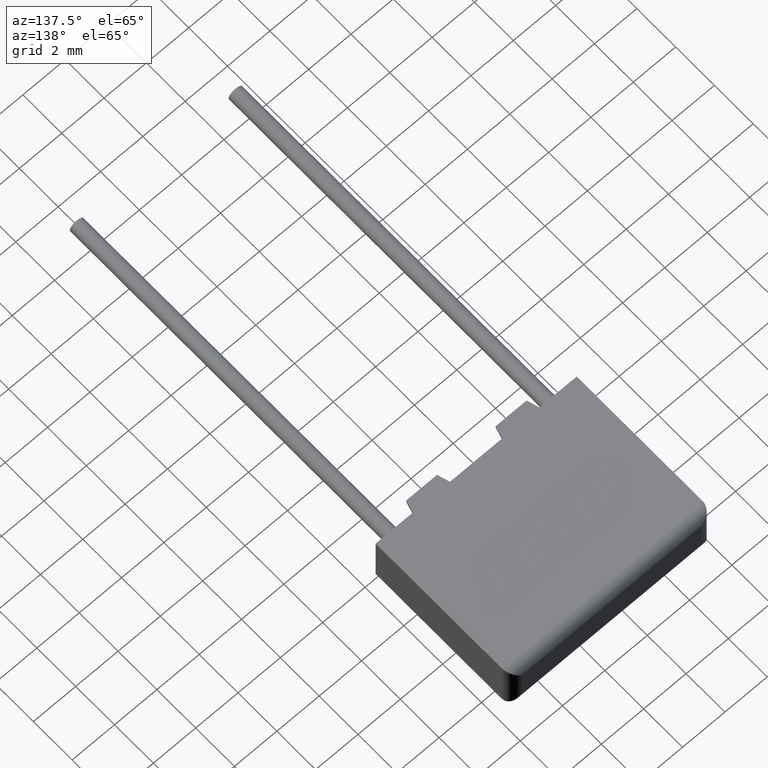
[diagram: clean part render]
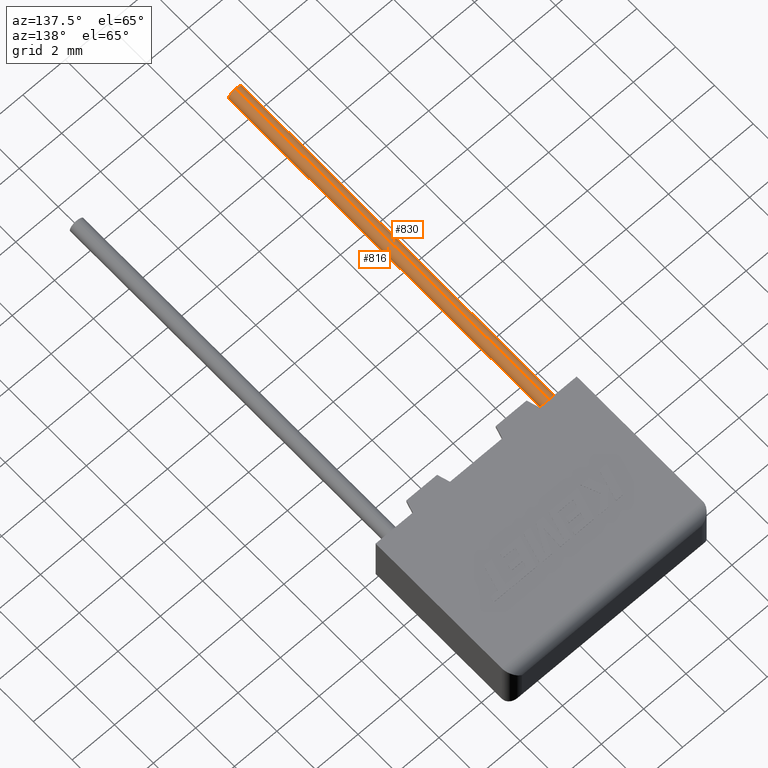
[diagram: same view with one multi-face feature highlighted, each face labeled with its STEP entity id]
A machine part, auxiliary view. The highlighted faces form ONE feature: a constant-radius fillet chain: 2 tangent blend faces with common blend radius 0.325 mm. The faces share edges in the B-rep.
Their STEP definitions:
[1] entity #830 (Cylinder):
#1 = CARTESIAN_POINT ( 'NONE',  ( 1.000000000000000000, -16.50000000000000000, 0.9249999999999998200 ) ) ;
#3 = VECTOR ( 'NONE', #983, 1000.000000000000000 ) ;
#38 = CIRCLE ( 'NONE', #1185, 0.3250000000000000100 ) ;
#89 = DIRECTION ( 'NONE',  ( 0.0000000000000000000, 0.0000000000000000000, -1.000000000000000000 ) ) ;
#176 = LINE ( 'NONE', #1, #2119 ) ;
#193 = CARTESIAN_POINT ( 'NONE',  ( 1.000000000000000000, 0.0000000000000000000, 1.249999999999999800 ) ) ;
#214 = EDGE_LOOP ( 'NONE', ( #694, #1488, #1243, #2752 ) ) ;
#306 = EDGE_CURVE ( 'NONE', #1738, #2451, #176, .T. ) ;
#524 = CARTESIAN_POINT ( 'NONE',  ( 1.000000000000000000, -16.50000000000000000, 1.249999999999999800 ) ) ;
#694 = ORIENTED_EDGE ( 'NONE', *, *, #306, .F. ) ;
#739 = CARTESIAN_POINT ( 'NONE',  ( 1.000000000000000000, -16.50000000000000000, 1.574999999999999700 ) ) ;
#798 = CIRCLE ( 'NONE', #2076, 0.3250000000000000100 ) ;
#830 = ADVANCED_FACE ( 'NONE', ( #1050 ), #2802, .T. ) ;
#983 = DIRECTION ( 'NONE',  ( -0.0000000000000000000, 1.000000000000000000, -0.0000000000000000000 ) ) ;
#994 = DIRECTION ( 'NONE',  ( -0.0000000000000000000, 1.000000000000000000, -0.0000000000000000000 ) ) ;
#1001 = LINE ( 'NONE', #739, #3 ) ;
#1050 = FACE_OUTER_BOUND ( 'NONE', #214, .T. ) ;
#1185 = AXIS2_PLACEMENT_3D ( 'NONE', #193, #2223, #2699 ) ;
#1243 = ORIENTED_EDGE ( 'NONE', *, *, #1350, .T. ) ;
#1350 = EDGE_CURVE ( 'NONE', #2117, #1648, #1001, .T. ) ;
#1488 = ORIENTED_EDGE ( 'NONE', *, *, #2488, .F. ) ;
#1504 = DIRECTION ( 'NONE',  ( 0.0000000000000000000, 0.0000000000000000000, 1.000000000000000000 ) ) ;
#1648 = VERTEX_POINT ( 'NONE', #1850 ) ;
#1738 = VERTEX_POINT ( 'NONE', #2150 ) ;
#1834 = EDGE_CURVE ( 'NONE', #1648, #2451, #38, .T. ) ;
#1850 = CARTESIAN_POINT ( 'NONE',  ( 1.000000000000000000, 0.0000000000000000000, 1.574999999999999700 ) ) ;
#1972 = AXIS2_PLACEMENT_3D ( 'NONE', #2019, #994, #1504 ) ;
#2019 = CARTESIAN_POINT ( 'NONE',  ( 1.000000000000000000, -16.50000000000000000, 1.249999999999999800 ) ) ;
#2076 = AXIS2_PLACEMENT_3D ( 'NONE', #524, #3048, #89 ) ;
#2117 = VERTEX_POINT ( 'NONE', #2328 ) ;
#2119 = VECTOR ( 'NONE', #2770, 1000.000000000000000 ) ;
#2150 = CARTESIAN_POINT ( 'NONE',  ( 1.000000000000000000, -16.50000000000000000, 0.9249999999999998200 ) ) ;
#2223 = DIRECTION ( 'NONE',  ( -0.0000000000000000000, -1.000000000000000000, -0.0000000000000000000 ) ) ;
#2328 = CARTESIAN_POINT ( 'NONE',  ( 1.000000000000000000, -16.50000000000000000, 1.574999999999999700 ) ) ;
#2451 = VERTEX_POINT ( 'NONE', #3065 ) ;
#2488 = EDGE_CURVE ( 'NONE', #2117, #1738, #798, .T. ) ;
#2699 = DIRECTION ( 'NONE',  ( 0.0000000000000000000, 0.0000000000000000000, 1.000000000000000000 ) ) ;
#2752 = ORIENTED_EDGE ( 'NONE', *, *, #1834, .T. ) ;
#2770 = DIRECTION ( 'NONE',  ( -0.0000000000000000000, 1.000000000000000000, -0.0000000000000000000 ) ) ;
#2802 = CYLINDRICAL_SURFACE ( 'NONE', #1972, 0.3250000000000000100 ) ;
#3048 = DIRECTION ( 'NONE',  ( 0.0000000000000000000, -1.000000000000000000, 0.0000000000000000000 ) ) ;
#3065 = CARTESIAN_POINT ( 'NONE',  ( 1.000000000000000000, 0.0000000000000000000, 0.9249999999999998200 ) ) ;
[2] entity #816 (Cylinder):
#1 = CARTESIAN_POINT ( 'NONE',  ( 1.000000000000000000, -16.50000000000000000, 0.9249999999999998200 ) ) ;
#3 = VECTOR ( 'NONE', #983, 1000.000000000000000 ) ;
#72 = EDGE_CURVE ( 'NONE', #1738, #2117, #2655, .T. ) ;
#108 = CARTESIAN_POINT ( 'NONE',  ( 1.000000000000000000, -16.50000000000000000, 1.249999999999999800 ) ) ;
#176 = LINE ( 'NONE', #1, #2119 ) ;
#306 = EDGE_CURVE ( 'NONE', #1738, #2451, #176, .T. ) ;
#476 = AXIS2_PLACEMENT_3D ( 'NONE', #946, #2505, #1722 ) ;
#530 = ORIENTED_EDGE ( 'NONE', *, *, #1350, .F. ) ;
#726 = DIRECTION ( 'NONE',  ( 0.0000000000000000000, 0.0000000000000000000, -1.000000000000000000 ) ) ;
#739 = CARTESIAN_POINT ( 'NONE',  ( 1.000000000000000000, -16.50000000000000000, 1.574999999999999700 ) ) ;
#740 = ORIENTED_EDGE ( 'NONE', *, *, #1798, .T. ) ;
#804 = ORIENTED_EDGE ( 'NONE', *, *, #72, .F. ) ;
#808 = CYLINDRICAL_SURFACE ( 'NONE', #476, 0.3250000000000000100 ) ;
#816 = ADVANCED_FACE ( 'NONE', ( #2283 ), #808, .T. ) ;
#946 = CARTESIAN_POINT ( 'NONE',  ( 1.000000000000000000, -16.50000000000000000, 1.249999999999999800 ) ) ;
#983 = DIRECTION ( 'NONE',  ( -0.0000000000000000000, 1.000000000000000000, -0.0000000000000000000 ) ) ;
#1001 = LINE ( 'NONE', #739, #3 ) ;
#1027 = AXIS2_PLACEMENT_3D ( 'NONE', #1407, #2130, #3160 ) ;
#1350 = EDGE_CURVE ( 'NONE', #2117, #1648, #1001, .T. ) ;
#1407 = CARTESIAN_POINT ( 'NONE',  ( 1.000000000000000000, 0.0000000000000000000, 1.249999999999999800 ) ) ;
#1648 = VERTEX_POINT ( 'NONE', #1850 ) ;
#1722 = DIRECTION ( 'NONE',  ( 0.0000000000000000000, 0.0000000000000000000, 1.000000000000000000 ) ) ;
#1738 = VERTEX_POINT ( 'NONE', #2150 ) ;
#1798 = EDGE_CURVE ( 'NONE', #2451, #1648, #3172, .T. ) ;
#1840 = DIRECTION ( 'NONE',  ( 0.0000000000000000000, -1.000000000000000000, 0.0000000000000000000 ) ) ;
#1850 = CARTESIAN_POINT ( 'NONE',  ( 1.000000000000000000, 0.0000000000000000000, 1.574999999999999700 ) ) ;
#2039 = EDGE_LOOP ( 'NONE', ( #804, #2953, #740, #530 ) ) ;
#2117 = VERTEX_POINT ( 'NONE', #2328 ) ;
#2119 = VECTOR ( 'NONE', #2770, 1000.000000000000000 ) ;
#2130 = DIRECTION ( 'NONE',  ( -0.0000000000000000000, -1.000000000000000000, -0.0000000000000000000 ) ) ;
#2150 = CARTESIAN_POINT ( 'NONE',  ( 1.000000000000000000, -16.50000000000000000, 0.9249999999999998200 ) ) ;
#2283 = FACE_OUTER_BOUND ( 'NONE', #2039, .T. ) ;
#2328 = CARTESIAN_POINT ( 'NONE',  ( 1.000000000000000000, -16.50000000000000000, 1.574999999999999700 ) ) ;
#2451 = VERTEX_POINT ( 'NONE', #3065 ) ;
#2505 = DIRECTION ( 'NONE',  ( -0.0000000000000000000, 1.000000000000000000, -0.0000000000000000000 ) ) ;
#2655 = CIRCLE ( 'NONE', #3104, 0.3250000000000000100 ) ;
#2770 = DIRECTION ( 'NONE',  ( -0.0000000000000000000, 1.000000000000000000, -0.0000000000000000000 ) ) ;
#2953 = ORIENTED_EDGE ( 'NONE', *, *, #306, .T. ) ;
#3065 = CARTESIAN_POINT ( 'NONE',  ( 1.000000000000000000, 0.0000000000000000000, 0.9249999999999998200 ) ) ;
#3104 = AXIS2_PLACEMENT_3D ( 'NONE', #108, #1840, #726 ) ;
#3160 = DIRECTION ( 'NONE',  ( 0.0000000000000000000, 0.0000000000000000000, 1.000000000000000000 ) ) ;
#3172 = CIRCLE ( 'NONE', #1027, 0.3250000000000000100 ) ;